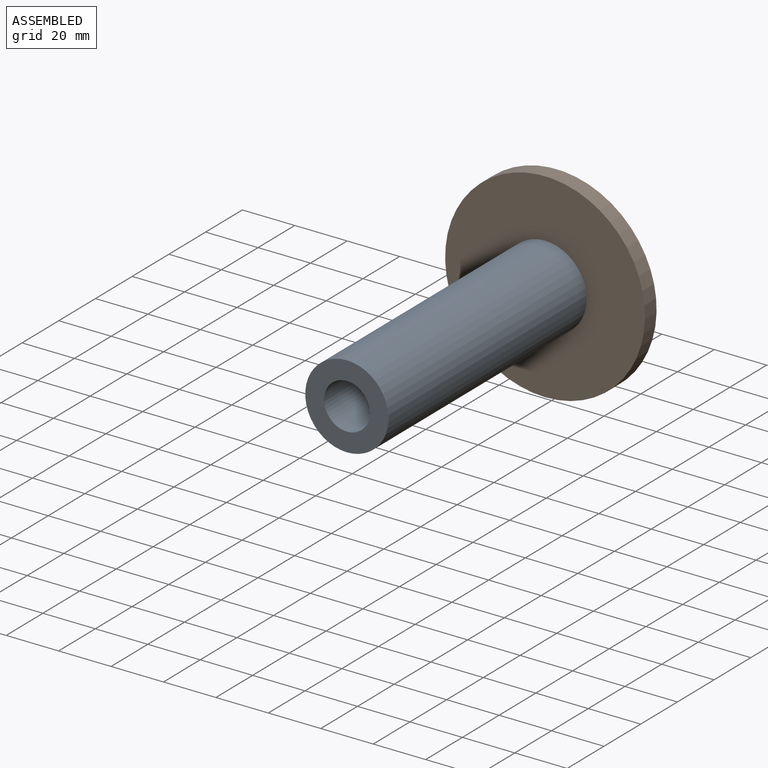
[diagram: assembled view]
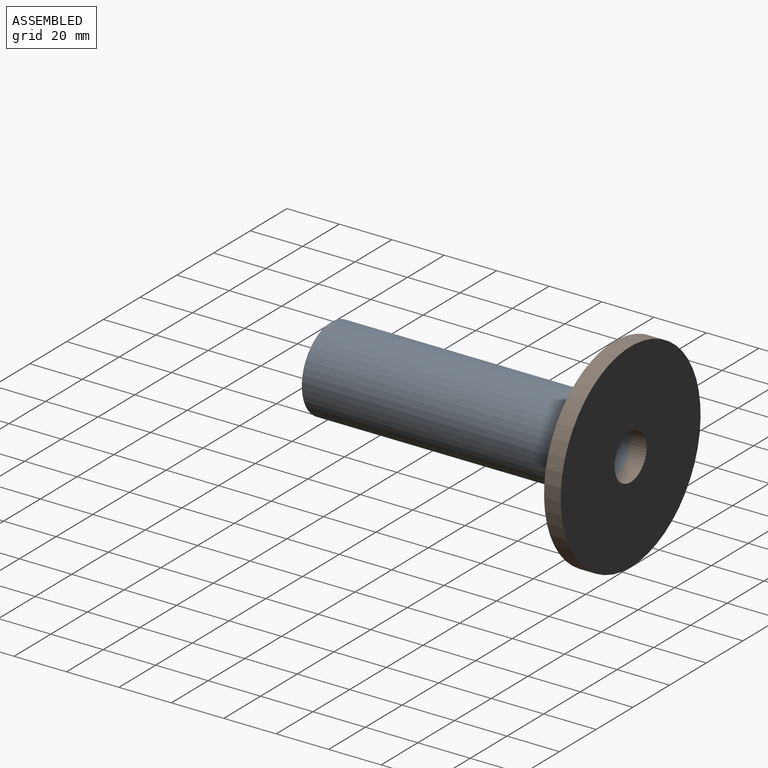
[diagram: assembled view, second angle]
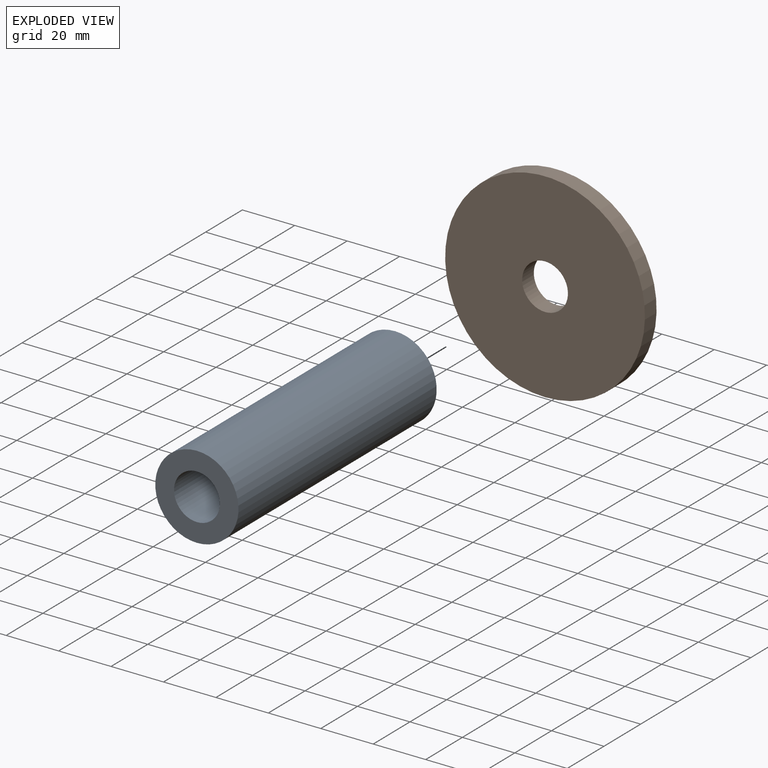
[diagram: exploded view]
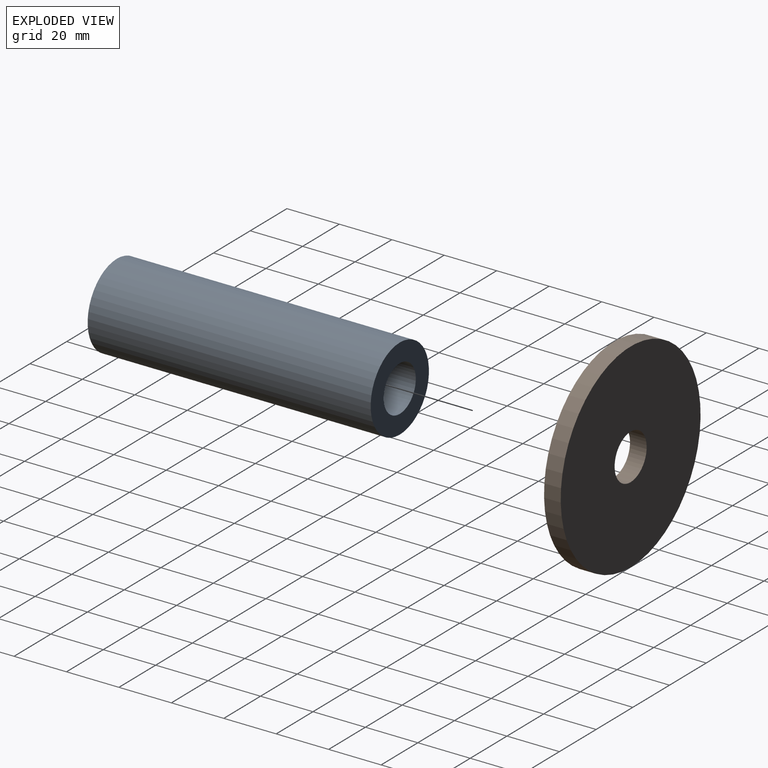
[diagram: exploded view, second angle]
ASSEMBLY  parts=2 mates=2
PART A: 4 faces, bbox 31.8x108x31.8 mm
  f0: cylinder r=8.73mm len=107.95mm, axis (0,1,0), area 5922.1mm2, adj f2,f3
  f1: cylinder r=15.88mm len=107.95mm, axis (0,1,0), area 10767.5mm2, adj f2,f3
  f2: plane 31.75x31.75mm, normal (0,-1,0), area 552.2mm2, adj f0,f1
  f3: plane 31.75x31.75mm, normal (0,1,0), area 552.2mm2, adj f0,f1
PART B: 4 faces, bbox 76.2x6.4x76.2 mm
  f0: cylinder r=8.73mm len=17.46mm, axis (0,1,0), area 348.4mm2, adj f2,f3
  f1: cylinder r=38.1mm len=76.2mm, axis (0,1,0), area 1520.1mm2, adj f2,f3
  f2: plane 76.2x76.2mm, normal (0,-1,0), area 4320.9mm2, adj f0,f1
  f3: plane 76.2x76.2mm, normal (0,1,0), area 4320.9mm2, adj f0,f1
PLACE A t=(-0.18,-3.32,-0.06)mm
PLACE B t=(-0.18,3.03,-0.06)mm
MATE cylindrical A.f1 <-> B.f1  axis (0,1,0) through (-0.18,-57.29,-0.06)mm
MATE planar A.f1 <-> B.f1  axis (0,1,0) through (-0.18,-3.32,-0.06)mm
